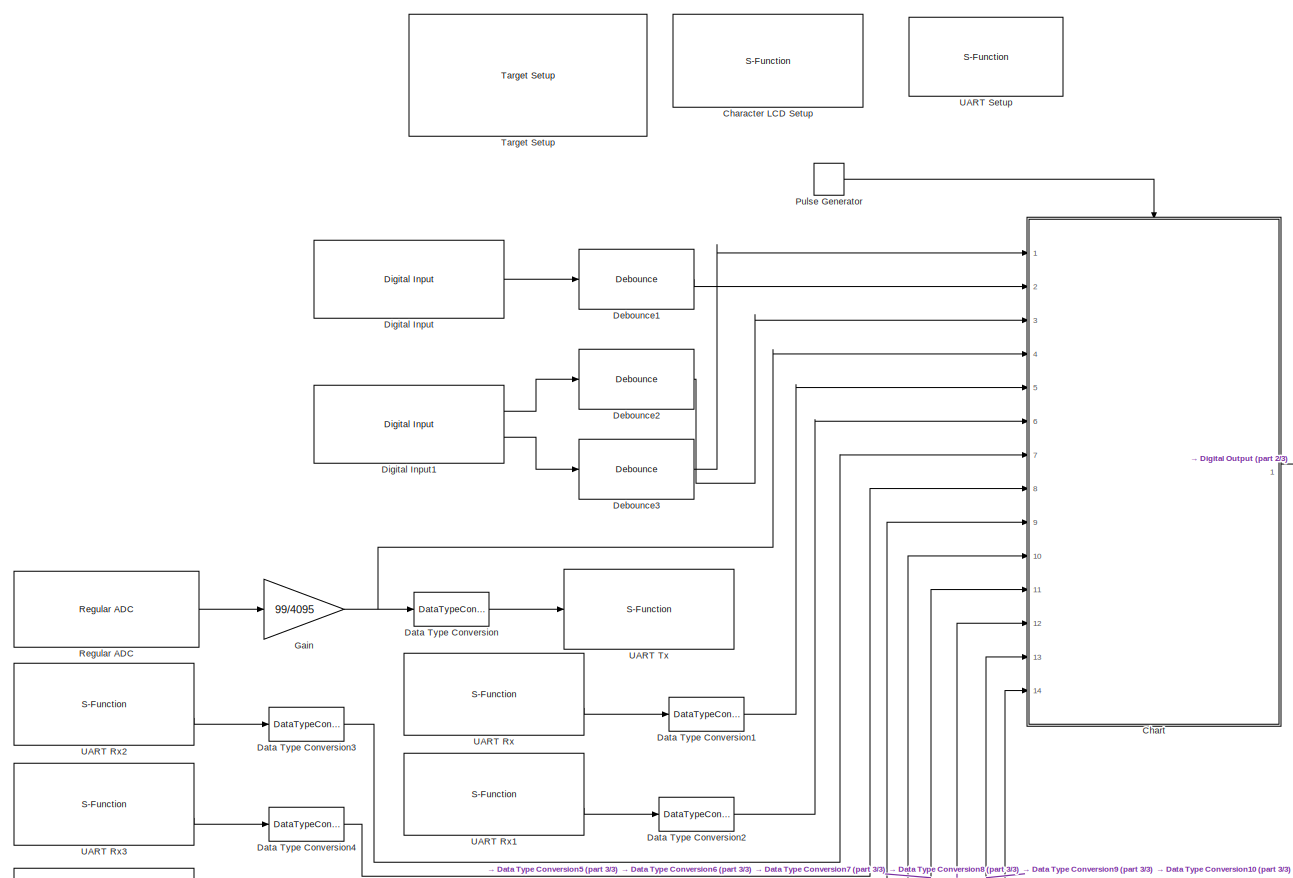
[diagram: root canvas - part 1/3, full width, middle band]
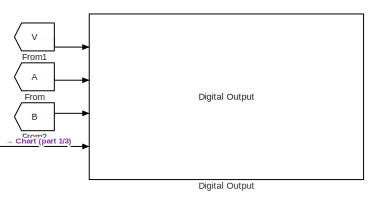
[diagram: root canvas - part 2/3, top right region]
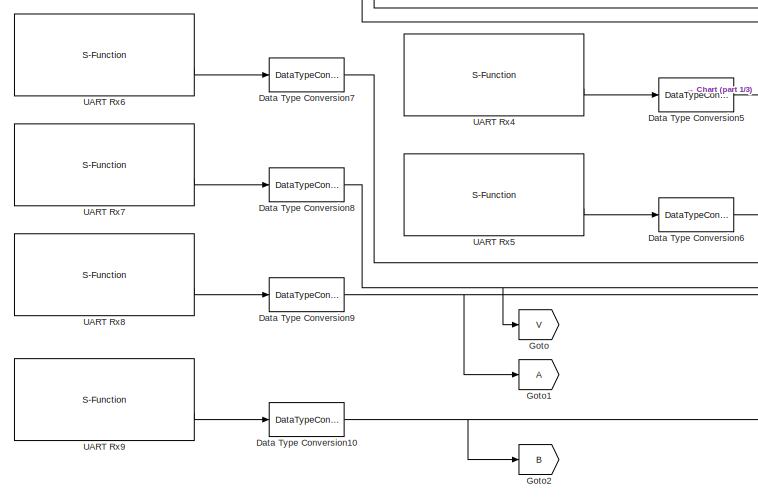
[diagram: root canvas - part 3/3, bottom left region]
MODEL slx_88ca73b4bfab
KIND model
CONFIG PreLoadFcn = waijung.modelPreload; % Required for working with Waijung Blockset. Do not remove.
BLOCK [S-Function] Character LCD Setup
  EnableBusSupport = off
  FunctionName = amg_clcd
  Parameters = module,configuration,inputtypearray,outputtypearray,confstr,sampletime,sampletimestr,blockid
  Ports = []
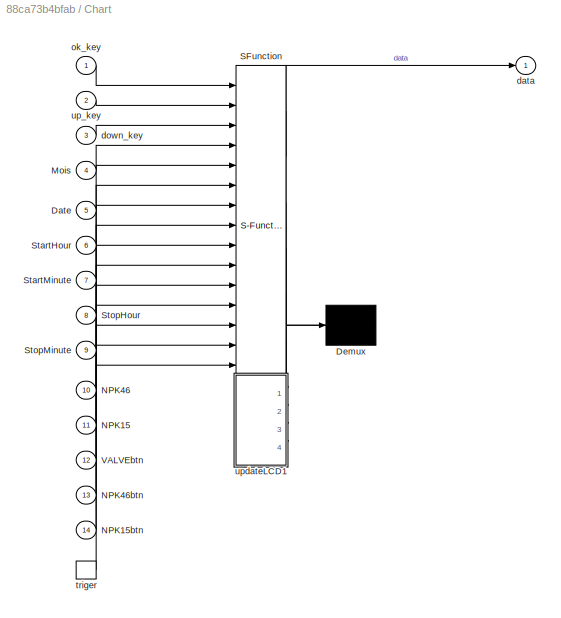
BLOCK [SubSystem] Chart
  ErrorFcn = Stateflow.Translate.translate
  FunctionWithSeparateData = off
  MaskHideContents = off
  MinAlgLoopOccurrences = off
  Opaque = off
  PermitHierarchicalResolution = ExplicitOnly
  Ports = [14, 1, 0, 1]
  PropExecContextOutsideSubsystem = off
  RTWSystemCode = Auto
  RequestExecContextInheritance = off
  SFBlockType = Chart
  TreatAsAtomicUnit = on
BLOCK [Demux] Chart/ Demux 
  Outputs = 1
  Ports = [1, 1]
BLOCK [S-Function] Chart/ SFunction 
  EnableBusSupport = on
  FunctionName = sf_sfun
  PortCounts = [15 6]
  Ports = [15, 6]
  Tag = Stateflow S-Function AutomaticWateringSystemProject 1
BLOCK [Inport] Chart/Date
  IconDisplay = Port number
  Port = 5
BLOCK [Inport] Chart/Mois
  IconDisplay = Port number
  Port = 4
BLOCK [Inport] Chart/NPK15
  IconDisplay = Port number
  Port = 11
BLOCK [Inport] Chart/NPK15btn
  IconDisplay = Port number
  Port = 14
BLOCK [Inport] Chart/NPK46
  IconDisplay = Port number
  Port = 10
BLOCK [Inport] Chart/NPK46btn
  IconDisplay = Port number
  Port = 13
BLOCK [Inport] Chart/StartHour
  IconDisplay = Port number
  Port = 6
BLOCK [Inport] Chart/StartMinute
  IconDisplay = Port number
  Port = 7
BLOCK [Inport] Chart/StopHour
  IconDisplay = Port number
  Port = 8
BLOCK [Inport] Chart/StopMinute
  IconDisplay = Port number
  Port = 9
BLOCK [Inport] Chart/VALVEbtn
  IconDisplay = Port number
  Port = 12
BLOCK [Outport] Chart/data
  IconDisplay = Port number
BLOCK [Inport] Chart/down_key
  IconDisplay = Port number
  Port = 3
BLOCK [Inport] Chart/ok_key
  IconDisplay = Port number
BLOCK [TriggerPort] Chart/triger
  Ports = [0, 1]
  ShowOutputPort = on
  StatesWhenEnabling = held
BLOCK [Inport] Chart/up_key
  IconDisplay = Port number
  Port = 2
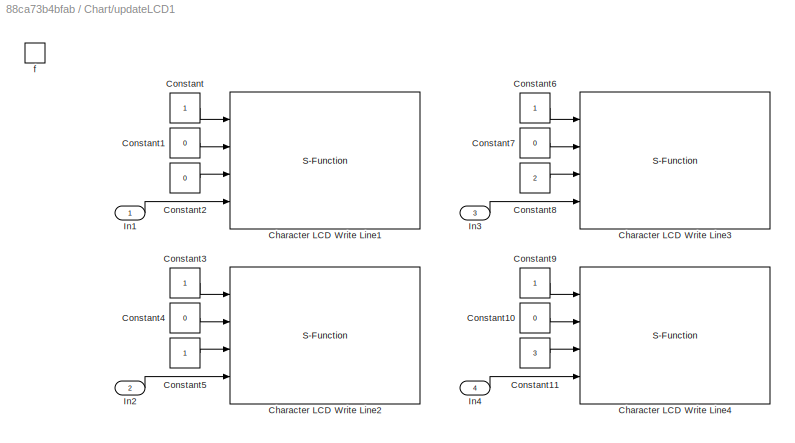
BLOCK [SubSystem] Chart/updateLCD1
  FunctionWithSeparateData = off
  MaskHideContents = off
  MinAlgLoopOccurrences = off
  Opaque = off
  Ports = [4, 0, 0, 1]
  PreDeleteFcn = Stateflow.SLINSF.SimulinkMan.removePreDeleteFcn
  PropExecContextOutsideSubsystem = off
  RTWSystemCode = Auto
  RequestExecContextInheritance = off
  UndoDeleteFcn = Stateflow.SLINSF.SimulinkMan.restorePreDeleteFcn
BLOCK [S-Function] Chart/updateLCD1/Character LCD Write Line1
  EnableBusSupport = off
  FunctionName = amg_clcd
  Parameters = module,configuration,inputtypearray,outputtypearray,confstr,sampletime,sampletimestr,blockid
  Ports = [4]
BLOCK [S-Function] Chart/updateLCD1/Character LCD Write Line2
  EnableBusSupport = off
  FunctionName = amg_clcd
  Parameters = module,configuration,inputtypearray,outputtypearray,confstr,sampletime,sampletimestr,blockid
  Ports = [4]
BLOCK [S-Function] Chart/updateLCD1/Character LCD Write Line3
  EnableBusSupport = off
  FunctionName = amg_clcd
  Parameters = module,configuration,inputtypearray,outputtypearray,confstr,sampletime,sampletimestr,blockid
  Ports = [4]
BLOCK [S-Function] Chart/updateLCD1/Character LCD Write Line4
  EnableBusSupport = off
  FunctionName = amg_clcd
  Parameters = module,configuration,inputtypearray,outputtypearray,confstr,sampletime,sampletimestr,blockid
  Ports = [4]
BLOCK [Constant] Chart/updateLCD1/Constant
BLOCK [Constant] Chart/updateLCD1/Constant1
  Value = 0
BLOCK [Constant] Chart/updateLCD1/Constant10
  Value = 0
BLOCK [Constant] Chart/updateLCD1/Constant11
  Value = 3
BLOCK [Constant] Chart/updateLCD1/Constant2
  Value = 0
BLOCK [Constant] Chart/updateLCD1/Constant3
BLOCK [Constant] Chart/updateLCD1/Constant4
  Value = 0
BLOCK [Constant] Chart/updateLCD1/Constant5
BLOCK [Constant] Chart/updateLCD1/Constant6
BLOCK [Constant] Chart/updateLCD1/Constant7
  Value = 0
BLOCK [Constant] Chart/updateLCD1/Constant8
  Value = 2
BLOCK [Constant] Chart/updateLCD1/Constant9
BLOCK [Inport] Chart/updateLCD1/In1
  IconDisplay = Port number
  OutDataTypeStr = uint8
  PortDimensions = [1 16]
BLOCK [Inport] Chart/updateLCD1/In2
  IconDisplay = Port number
  OutDataTypeStr = uint8
  Port = 2
  PortDimensions = [1 16]
BLOCK [Inport] Chart/updateLCD1/In3
  IconDisplay = Port number
  OutDataTypeStr = uint8
  Port = 3
  PortDimensions = [1 16]
BLOCK [Inport] Chart/updateLCD1/In4
  IconDisplay = Port number
  OutDataTypeStr = uint8
  Port = 4
  PortDimensions = [1 16]
BLOCK [TriggerPort] Chart/updateLCD1/f
  CopyFcn = Stateflow.SLINSF.SimulinkMan.removeBlockPreDeleteFcn
  Ports = []
  PreDeleteFcn = Stateflow.SLINSF.SimulinkMan.unsafePredeleteFcn
  StatesWhenEnabling = held
  TriggerType = function-call
BLOCK [DataTypeConversion] Data Type Conversion
  RndMeth = Floor
  SaturateOnIntegerOverflow = off
BLOCK [DataTypeConversion] Data Type Conversion1
  RndMeth = Floor
  SaturateOnIntegerOverflow = off
BLOCK [DataTypeConversion] Data Type Conversion10
  RndMeth = Floor
  SaturateOnIntegerOverflow = off
BLOCK [DataTypeConversion] Data Type Conversion2
  RndMeth = Floor
  SaturateOnIntegerOverflow = off
BLOCK [DataTypeConversion] Data Type Conversion3
  RndMeth = Floor
  SaturateOnIntegerOverflow = off
BLOCK [DataTypeConversion] Data Type Conversion4
  RndMeth = Floor
  SaturateOnIntegerOverflow = off
BLOCK [DataTypeConversion] Data Type Conversion5
  RndMeth = Floor
  SaturateOnIntegerOverflow = off
BLOCK [DataTypeConversion] Data Type Conversion6
  RndMeth = Floor
  SaturateOnIntegerOverflow = off
BLOCK [DataTypeConversion] Data Type Conversion7
  RndMeth = Floor
  SaturateOnIntegerOverflow = off
BLOCK [DataTypeConversion] Data Type Conversion8
  RndMeth = Floor
  SaturateOnIntegerOverflow = off
BLOCK [DataTypeConversion] Data Type Conversion9
  RndMeth = Floor
  SaturateOnIntegerOverflow = off
BLOCK [Reference] Debounce1  REF=stm32f4_io_lib/Debounce
  Ports = [1, 1]
  SourceBlock = stm32f4_io_lib/Debounce
  debounce = 4
  mode = Normal
  prescale = 4
BLOCK [Reference] Debounce2  REF=stm32f4_io_lib/Debounce
  Ports = [1, 1]
  SourceBlock = stm32f4_io_lib/Debounce
  debounce = 4
  mode = Normal
  prescale = 4
BLOCK [Reference] Debounce3  REF=stm32f4_io_lib/Debounce
  Ports = [1, 1]
  SourceBlock = stm32f4_io_lib/Debounce
  debounce = 4
  mode = Normal
  prescale = 4
BLOCK [Reference] Digital Input  REF=stm32f4_io_lib/Digital Input
  Ports = [0, 1]
  SourceBlock = stm32f4_io_lib/Digital Input
  SourceType = stm32f4_digital_input
  bitbandingstr = #define DigitalInput_D7 Peripheral_BB(GPIOD->IDR, 7)  /* Output pin */
  blockid = DigitalInput
  cinputportlabel = In1, In2
  coutputportlabel = Out1, Out2
  enablecustomportlabel = off
  glabalinit = off
  pinstr = GPIO_Pin_7
  port = D
  porttype = None
  porttypestr = NOPULL
  sampletime = 0.01
  sampletimestr = 0.01
  speed = 100
  use_pin0 = off
  use_pin1 = off
  use_pin10 = off
  use_pin11 = off
  use_pin12 = off
  use_pin13 = off
  use_pin14 = off
  use_pin15 = off
  use_pin2 = off
  use_pin3 = off
  use_pin4 = off
  use_pin5 = off
  use_pin6 = off
  use_pin7 = on
  use_pin8 = off
  use_pin9 = off
  usedpinarray = [0  0  0  0  0  0  0  1  0  0  0  0  0  0  0  0]
BLOCK [Reference] Digital Input1  REF=stm32f4_io_lib/Digital Input
  Ports = [0, 2]
  SourceBlock = stm32f4_io_lib/Digital Input
  SourceType = stm32f4_digital_input
  bitbandingstr = #define DigitalInput1_B2 Peripheral_BB(GPIOB->IDR, 2)  /* Output pin */\n#define DigitalInput1_B15 Peripheral_BB(GPIOB->IDR, 15)  /* Output pin */
  blockid = DigitalInput1
  cinputportlabel = In1, In2
  coutputportlabel = Out1, Out2
  enablecustomportlabel = off
  glabalinit = off
  pinstr = GPIO_Pin_2 | GPIO_Pin_15
  port = B
  porttype = None
  porttypestr = NOPULL
  sampletime = 0.01
  sampletimestr = 0.01
  speed = 100
  use_pin0 = off
  use_pin1 = off
  use_pin10 = off
  use_pin11 = off
  use_pin12 = off
  use_pin13 = off
  use_pin14 = off
  use_pin15 = on
  use_pin2 = on
  use_pin3 = off
  use_pin4 = off
  use_pin5 = off
  use_pin6 = off
  use_pin7 = off
  use_pin8 = off
  use_pin9 = off
  usedpinarray = [0  0  1  0  0  0  0  0  0  0  0  0  0  0  0  1]
BLOCK [Reference] Digital Output  REF=stm32f4_io_lib/Digital Output
  Ports = [4]
  SourceBlock = stm32f4_io_lib/Digital Output
  SourceType = stm32f4_digital_output
  bitbandingstr = #define DigitalOutput_D12 Peripheral_BB(GPIOD->ODR, 12)  /* Output pin */\n#define DigitalOutput_D13 Peripheral_BB(GPIOD->ODR, 13)  /* Output pin */\n#define DigitalOutput_D14 Peripheral_BB(GPIOD->ODR, 14)  /* Output pin */\n#define DigitalOutput_D15 Peripheral_BB(GPIOD->ODR, 15)  /* Output pin */
  blockid = DigitalOutput
  cinputportlabel = In1, In2
  coutputportlabel = 0
  enablecustomportlabel = off
  globalinit = off
  pinstr = GPIO_Pin_12 | GPIO_Pin_13 | GPIO_Pin_14 | GPIO_Pin_15
  port = D
  porttype = Push Pull
  porttypestr = PP
  sampletime = -1
  sampletimestr = 0.005
  speed = 100
  use_bitband = on
  use_pin0 = off
  use_pin1 = off
  use_pin10 = off
  use_pin11 = off
  use_pin12 = on
  use_pin13 = on
  use_pin14 = on
  use_pin15 = on
  use_pin2 = off
  use_pin3 = off
  use_pin4 = off
  use_pin5 = off
  use_pin6 = off
  use_pin7 = off
  use_pin8 = off
  use_pin9 = off
  usedpinarray = [0  0  0  0  0  0  0  0  0  0  0  0  1  1  1  1]
BLOCK [From] From
BLOCK [From] From1
  GotoTag = V
BLOCK [From] From2
  GotoTag = B
BLOCK [Gain] Gain
  Gain = 99/4095
  OutDataTypeStr = Inherit: Inherit via internal rule
  ParamDataTypeStr = Inherit: Inherit via internal rule
  SaturateOnIntegerOverflow = off
BLOCK [Goto] Goto
  GotoTag = V
BLOCK [Goto] Goto1
BLOCK [Goto] Goto2
  GotoTag = B
BLOCK [DiscretePulseGenerator] Pulse Generator
  Period = 0.01
  Ports = [0, 1]
  PulseType = Time based
  PulseWidth = 50
BLOCK [Reference] Regular ADC  REF=stm32f4_adc_lib/Regular ADC
  Ports = [0, 1]
  SourceBlock = stm32f4_adc_lib/Regular ADC
  SourceType = stm32f4_regular_adc
  adcmodule = 1
  blockid = RegularADC
  chsamplingtime = Auto
  chsamplingtimestr = ADC_SampleTime_480Cycles
  cinputportlabel = 0
  coutputportlabel = Out1, Out2
  enablecustomportlabel = off
  outputdatatype = Double
  pinstr = GPIO_Pin_3
  prescaler = 2
  prescalerstr = ADC_Prescaler_Div2
  read_an0 = off
  read_an1 = off
  read_an10 = off
  read_an11 = off
  read_an12 = off
  read_an13 = off
  read_an14 = off
  read_an15 = off
  read_an16 = off
  read_an17 = off
  read_an18 = off
  read_an2 = off
  read_an3 = on
  read_an4 = off
  read_an5 = off
  read_an6 = off
  read_an7 = off
  read_an8 = off
  read_an9 = off
  sampletime = -1
  usedpinarray = [0  0  0  1  0  0  0  0  0  0  0  0  0  0  0  0  0  0  0]
  usedpinidarray = [3]
  usedpinidcount = 1
  usedportidarray = [0]
BLOCK [Reference] Target Setup  REF=stm32f4_device_config_lib/Target Setup
  Ports = []
  Priority = 100
  SourceBlock = stm32f4_device_config_lib/Target Setup
  SourceType = stm32f4_target_setup
  assemblercontrolstr = $(patsubst %, -I%, .) -mcpu=cortex-m4 -mthumb -mthumb-interwork -mfloat-abi=hard -mfpu=fpv4-sp-d16 -ffast-math -Wall -Wextra -Ofast -Wa,-amhls=$(<:.s=.lst) -D__STACK_SIZE=$(STACK_SIZE) -D__HEAP_SIZE=$(HEAP_SIZE)
  blockid = TargetSetup
  clockconfig = HSEOSC-8MHz
  compiler = GNU ARM
  compilercontrolstr = $(patsubst %, -I%, .) -mcpu=cortex-m4 -mthumb -mthumb-interwork -mfloat-abi=hard -mfpu=fpv4-sp-d16 -ffast-math -Wall -Wextra -Ofast
  editctrlstr = on
  enableautocompiledownload = on
  execprofile = None
  flashlength = 1024k
  flashorigin = 0x8000000
  fullchiperase = off
  hclk = 168000000
  heapsize = 0x2000
  hseval = 8000000
  lastprofileruart = 3
  linkercontrolstr = -T$(LD_SCRIPT) -g -Wl,-Map=$(MAP),--cref,--no-warn-mismatch -mcpu=cortex-m4 -mthumb -mthumb-interwork -mfloat-abi=hard -mfpu=fpv4-sp-d16
  manualsetsampletime = off
  mcu = STM32F407VG (LQFP100)
  mcustr = STM32F407VG
  previous_compiler = GNU ARM
  profilerbaud = 500000
  profilerinitstr = 0.001,168000000,168000,500000,0
  profilertxpin = D8
  profileruart = 3
  programmerinterface = ST-Link
  ramlength = 128k
  ramorigin = 0x20000000
  runafterdownload = on
  sampletime = 0.001
  showmemoryconfiguration = off
  stacksize = 0x2000
  system_stm32f4xx_c_path = <path>
  systickreloadvalue = 168000
  useextram = off
BLOCK [S-Function] UART Rx
  EnableBusSupport = off
  FunctionName = stm32f4_usart
  Parameters = configuration,uartmodule,transfer,baudrate,inputtype,outputtype,confstr,binheaderarray,binterminatorarray,asciiheader,asciiterminator,bindatalength,packetmode,varname,sampletime,sampletimestr,blockid  <repeated x12 — deduplicated; at blocks: UART Rx, UART Rx1, UART Rx2, UART Rx3, UART Rx4, UART Rx5, UART Rx6, UART Rx7, UART Rx8, UART Rx9, UART Setup, UART Tx>
  Ports = [0, 2]
  Priority = 1
BLOCK [S-Function] UART Rx1
  EnableBusSupport = off
  FunctionName = stm32f4_usart
  Ports = [0, 2]
  Priority = 1
BLOCK [S-Function] UART Rx2
  EnableBusSupport = off
  FunctionName = stm32f4_usart
  Ports = [0, 2]
  Priority = 1
BLOCK [S-Function] UART Rx3
  EnableBusSupport = off
  FunctionName = stm32f4_usart
  Ports = [0, 2]
  Priority = 1
BLOCK [S-Function] UART Rx4
  EnableBusSupport = off
  FunctionName = stm32f4_usart
  Ports = [0, 2]
  Priority = 1
BLOCK [S-Function] UART Rx5
  EnableBusSupport = off
  FunctionName = stm32f4_usart
  Ports = [0, 2]
  Priority = 1
BLOCK [S-Function] UART Rx6
  EnableBusSupport = off
  FunctionName = stm32f4_usart
  Ports = [0, 2]
  Priority = 1
BLOCK [S-Function] UART Rx7
  EnableBusSupport = off
  FunctionName = stm32f4_usart
  Ports = [0, 2]
  Priority = 1
BLOCK [S-Function] UART Rx8
  EnableBusSupport = off
  FunctionName = stm32f4_usart
  Ports = [0, 2]
  Priority = 1
BLOCK [S-Function] UART Rx9
  EnableBusSupport = off
  FunctionName = stm32f4_usart
  Ports = [0, 2]
  Priority = 1
BLOCK [S-Function] UART Setup
  EnableBusSupport = off
  FunctionName = stm32f4_usart
  Ports = []
  Priority = 1
BLOCK [S-Function] UART Tx
  EnableBusSupport = off
  FunctionName = stm32f4_usart
  Ports = [1]
  Priority = 1
LINE Chart:1 -> Digital Output:4
NET Data Type Conversion10:1 -> Chart:14, Goto2:1
LINE Data Type Conversion1:1 -> Chart:5
LINE Data Type Conversion2:1 -> Chart:6
LINE Data Type Conversion3:1 -> Chart:7
LINE Data Type Conversion4:1 -> Chart:8
LINE Data Type Conversion5:1 -> Chart:9
LINE Data Type Conversion6:1 -> Chart:10
LINE Data Type Conversion7:1 -> Chart:11
NET Data Type Conversion8:1 -> Chart:12, Goto:1
NET Data Type Conversion9:1 -> Chart:13, Goto1:1
LINE Data Type Conversion:1 -> UART Tx:1
LINE Debounce1:1 -> Chart:2
LINE Debounce2:1 -> Chart:3
LINE Debounce3:1 -> Chart:1
LINE Digital Input1:1 -> Debounce2:1
LINE Digital Input1:2 -> Debounce3:1
LINE Digital Input:1 -> Debounce1:1
LINE From1:1 -> Digital Output:1
LINE From2:1 -> Digital Output:3
LINE From:1 -> Digital Output:2
NET Gain:1 -> Chart:4, Data Type Conversion:1
LINE Pulse Generator:1 -> Chart:trigger
LINE Regular ADC:1 -> Gain:1
LINE UART Rx1:2 -> Data Type Conversion2:1
LINE UART Rx2:2 -> Data Type Conversion3:1
LINE UART Rx3:2 -> Data Type Conversion4:1
LINE UART Rx4:2 -> Data Type Conversion5:1
LINE UART Rx5:2 -> Data Type Conversion6:1
LINE UART Rx6:2 -> Data Type Conversion7:1
LINE UART Rx7:2 -> Data Type Conversion8:1
LINE UART Rx8:2 -> Data Type Conversion9:1
LINE UART Rx9:2 -> Data Type Conversion10:1
LINE UART Rx:2 -> Data Type Conversion1:1
note: NET lines group one-source signal fan-out (src -> all destinations, sorted); 1:1 wires keep LINE
note: 1 file-system path scrubbed to <path> (not preserved elsewhere — flat text is the only slx artifact)
